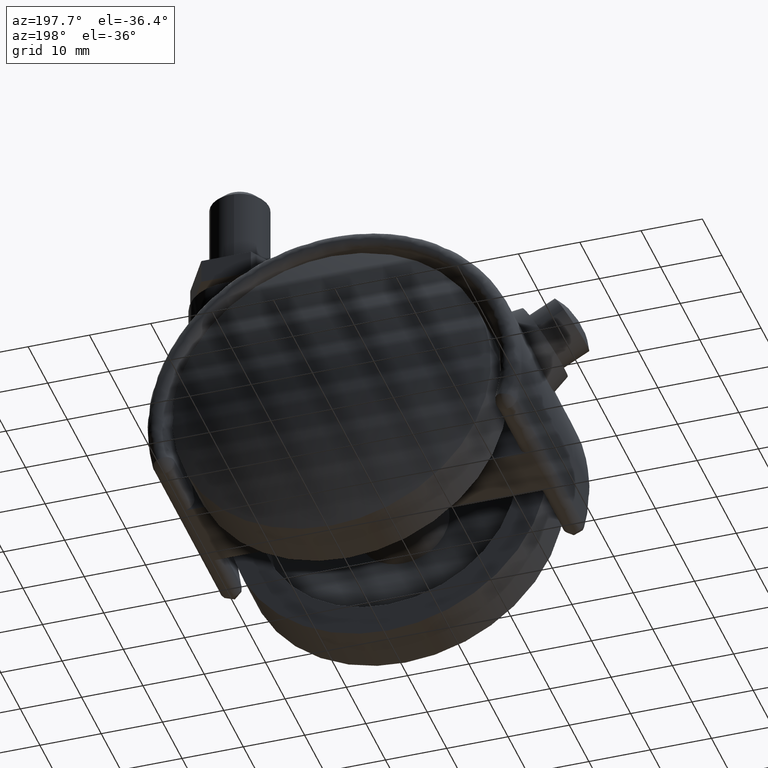
[diagram: clean part render]
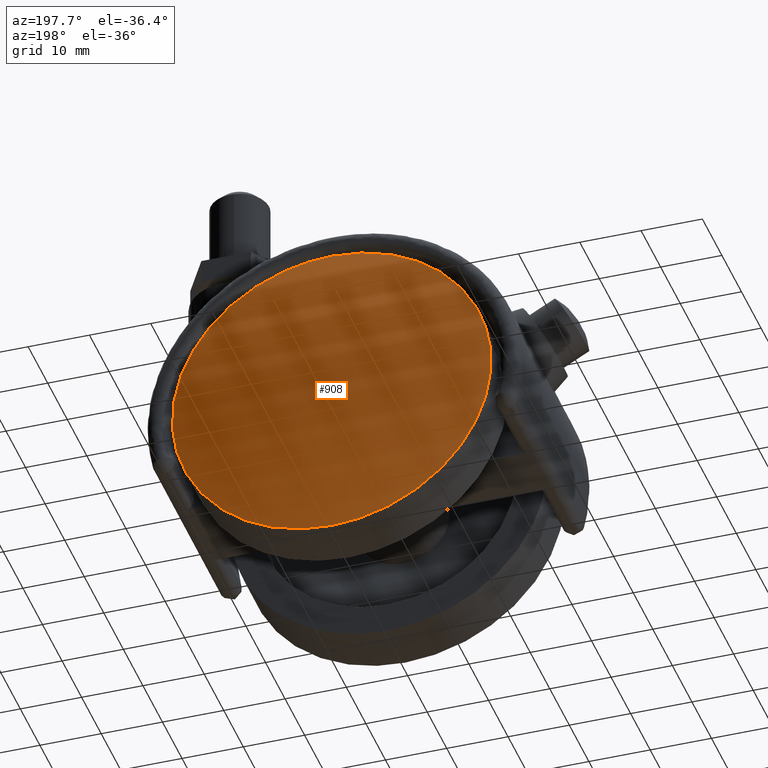
[diagram: same view with one face highlighted and labeled with its STEP entity id]
A machine part, auxiliary view. The second image highlights one B-rep face of the part: STEP entity #908.
In plain terms, the highlighted face is a freeform B-spline surface patch.
Its self-contained STEP definition (entity closure, byte-faithful):
#647=CARTESIAN_POINT('',(25.818248822043071,-18.850000010721249,3.068880539053032));
#648=VERTEX_POINT('',#647);
#654=CARTESIAN_POINT('',(0.0,-18.850000010721249,-26.0));
#655=VERTEX_POINT('',#654);
#656=CARTESIAN_POINT('',(25.818248822043074,-18.850000010721249,3.068880539053032));
#657=CARTESIAN_POINT('',(26.0,-18.850000010721246,1.539822279394345));
#658=CARTESIAN_POINT('',(26.0,-18.850000010721249,0.0));
#659=CARTESIAN_POINT('',(26.000000000000007,-18.850000010721253,-26.000000000000007));
#660=CARTESIAN_POINT('',(0.0,-18.850000010721249,-26.0));
#668=(BOUNDED_CURVE()B_SPLINE_CURVE(2,(#656,#657,#658,#659,#660),.UNSPECIFIED.,.F.,.U.)B_SPLINE_CURVE_WITH_KNOTS((3,2,3),(0.229562536107535,0.250000000000000,0.500000000000000),.UNSPECIFIED.)CURVE()GEOMETRIC_REPRESENTATION_ITEM()RATIONAL_B_SPLINE_CURVE((0.956026876870590,0.976056021664609,1.0,0.707106781186547,1.0))REPRESENTATION_ITEM(''));
#669=EDGE_CURVE('',#648,#655,#668,.T.);
#671=CARTESIAN_POINT('',(-25.951506237376812,-18.850000010721249,-1.587237855775190));
#672=VERTEX_POINT('',#671);
#673=CARTESIAN_POINT('',(0.0,-18.850000010721249,-26.0));
#674=CARTESIAN_POINT('',(-24.458380563490213,-18.850000010721253,-26.000000000000004));
#675=CARTESIAN_POINT('',(-25.951506237376812,-18.850000010721256,-1.587237855775190));
#683=(BOUNDED_CURVE()B_SPLINE_CURVE(2,(#673,#674,#675),.UNSPECIFIED.,.F.,.U.)B_SPLINE_CURVE_WITH_KNOTS((3,3),(0.500000000000000,0.739333122958049),.UNSPECIFIED.)CURVE()GEOMETRIC_REPRESENTATION_ITEM()RATIONAL_B_SPLINE_CURVE((1.0,0.719603804992565,0.976072386118597))REPRESENTATION_ITEM(''));
#684=EDGE_CURVE('',#655,#672,#683,.T.);
#758=CARTESIAN_POINT('',(0.0,-18.850000010721249,26.0));
#759=VERTEX_POINT('',#758);
#760=CARTESIAN_POINT('',(-25.951506237376812,-18.850000010721256,-1.587237855775190));
#761=CARTESIAN_POINT('',(-26.000000000000004,-18.850000010721249,-0.794359725810473));
#762=CARTESIAN_POINT('',(-26.0,-18.850000010721249,0.0));
#763=CARTESIAN_POINT('',(-26.000000000000007,-18.850000010721253,26.000000000000007));
#764=CARTESIAN_POINT('',(0.0,-18.850000010721249,26.0));
#772=(BOUNDED_CURVE()B_SPLINE_CURVE(2,(#760,#761,#762,#763,#764),.UNSPECIFIED.,.F.,.U.)B_SPLINE_CURVE_WITH_KNOTS((3,2,3),(0.739333122958049,0.750000000000000,1.0),.UNSPECIFIED.)CURVE()GEOMETRIC_REPRESENTATION_ITEM()RATIONAL_B_SPLINE_CURVE((0.976072386118597,0.987502976193982,1.0,0.707106781186547,1.0))REPRESENTATION_ITEM(''));
#773=EDGE_CURVE('',#672,#759,#772,.T.);
#775=CARTESIAN_POINT('',(0.0,-18.850000010721249,26.0));
#776=CARTESIAN_POINT('',(23.092546287474924,-18.850000010721256,26.000000000000004));
#777=CARTESIAN_POINT('',(25.818248822043074,-18.850000010721249,3.068880539053032));
#785=(BOUNDED_CURVE()B_SPLINE_CURVE(2,(#775,#776,#777),.UNSPECIFIED.,.F.,.U.)B_SPLINE_CURVE_WITH_KNOTS((3,3),(0.0,0.229562536107535),.UNSPECIFIED.)CURVE()GEOMETRIC_REPRESENTATION_ITEM()RATIONAL_B_SPLINE_CURVE((1.0,0.731050759521938,0.956026876870590))REPRESENTATION_ITEM(''));
#786=EDGE_CURVE('',#759,#648,#785,.T.);
#878=CARTESIAN_POINT('',(-27.509549926636168,-13.008914040041091,-27.510158300489607));
#879=CARTESIAN_POINT('',(-14.215357172331299,-17.957877278112200,-28.431343090072335));
#880=CARTESIAN_POINT('',(14.215437443623866,-17.957877278112200,-28.431343090072343));
#881=CARTESIAN_POINT('',(27.509695201312574,-13.008859959194146,-27.510148234047154));
#882=CARTESIAN_POINT('',(-28.430756452596956,-17.958103503328051,-14.215692599468984));
#883=CARTESIAN_POINT('',(-14.707876000288090,-23.249999999999972,-14.708201265049651));
#884=CARTESIAN_POINT('',(14.707959052736440,-23.249999999999972,-14.708201265049651));
#885=CARTESIAN_POINT('',(28.430906243680802,-17.958045739849460,-14.215687223510884));
#886=CARTESIAN_POINT('',(-28.430756452596956,-17.958103503328051,14.215694394626166));
#887=CARTESIAN_POINT('',(-14.707876000288090,-23.249999999999972,14.708203122400811));
#888=CARTESIAN_POINT('',(14.707959052736440,-23.249999999999972,14.708203122400811));
#889=CARTESIAN_POINT('',(28.430906243680802,-17.958045739849460,14.215689018667387));
#890=CARTESIAN_POINT('',(-27.509549701514885,-13.008912830575197,27.510161549345181));
#891=CARTESIAN_POINT('',(-14.215357052106201,-17.957875986291608,28.431346439925839));
#892=CARTESIAN_POINT('',(14.215437323398092,-17.957875986291608,28.431346439925850));
#893=CARTESIAN_POINT('',(27.509694976190186,-13.008858749729136,27.510151482901620));
#901=(BOUNDED_SURFACE()B_SPLINE_SURFACE(2,2,((#878,#882,#886,#890),(#879,#883,#887,#891),(#880,#884,#888,#892),(#881,#885,#889,#893)),.UNSPECIFIED.,.F.,.F.,.U.)B_SPLINE_SURFACE_WITH_KNOTS((3,1,3),(3,1,3),(14.714415427684781,42.997826829478043,71.281397942066192),(14.713789939880369,42.997826829478043,71.281867290782927),.UNSPECIFIED.)GEOMETRIC_REPRESENTATION_ITEM()RATIONAL_B_SPLINE_SURFACE(((1.069292375884866,1.034645421750261,1.034645421750261,1.069292384635299),(1.034646954134605,1.0,1.0,1.034646962885038),(1.034646954134605,1.0,1.0,1.034646962885038),(1.069292767157573,1.034645813022969,1.034645813022969,1.069292775908006)))REPRESENTATION_ITEM('')SURFACE());
#902=ORIENTED_EDGE('',*,*,#773,.F.);
#903=ORIENTED_EDGE('',*,*,#684,.F.);
#904=ORIENTED_EDGE('',*,*,#669,.F.);
#905=ORIENTED_EDGE('',*,*,#786,.F.);
#906=EDGE_LOOP('',(#902,#903,#904,#905));
#907=FACE_OUTER_BOUND('',#906,.T.);
#908=ADVANCED_FACE('',(#907),#901,.T.);